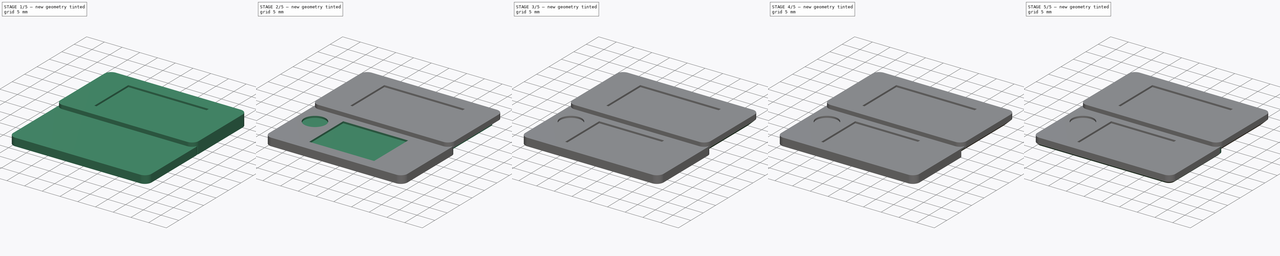
[diagram: build sequence overview — one tinted view per stage of 5, left to right]
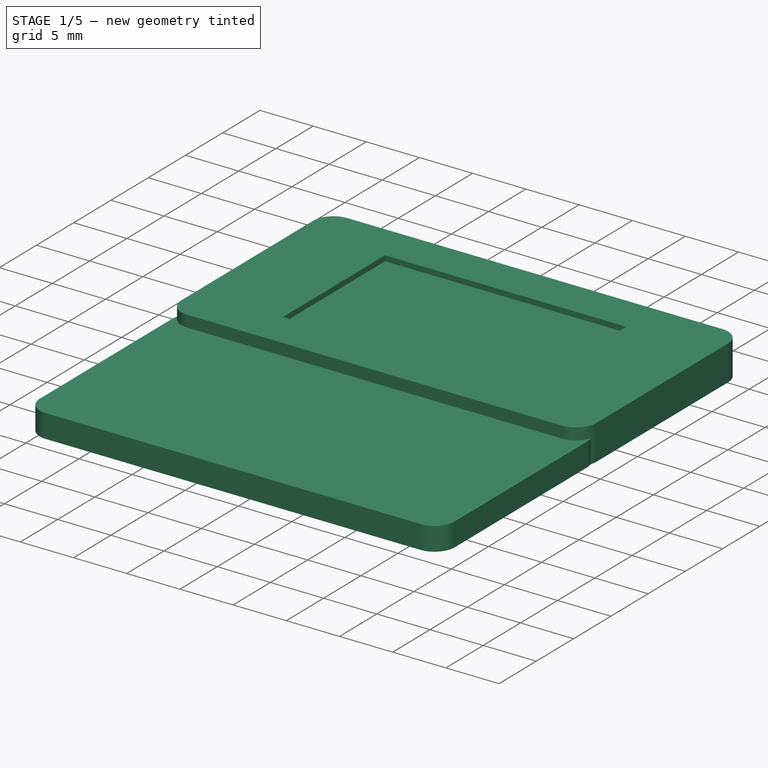
[diagram: stage 1 of 5 — iso view after this stage's code; geometry added in this stage tinted green]
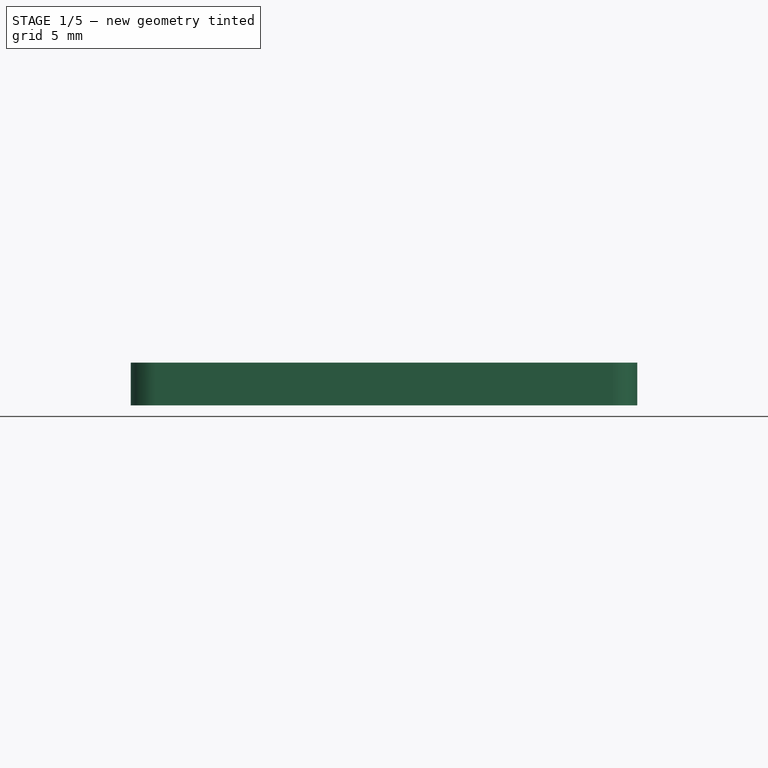
[diagram: stage 1 of 5 — front view after this stage's code; geometry added in this stage tinted green]
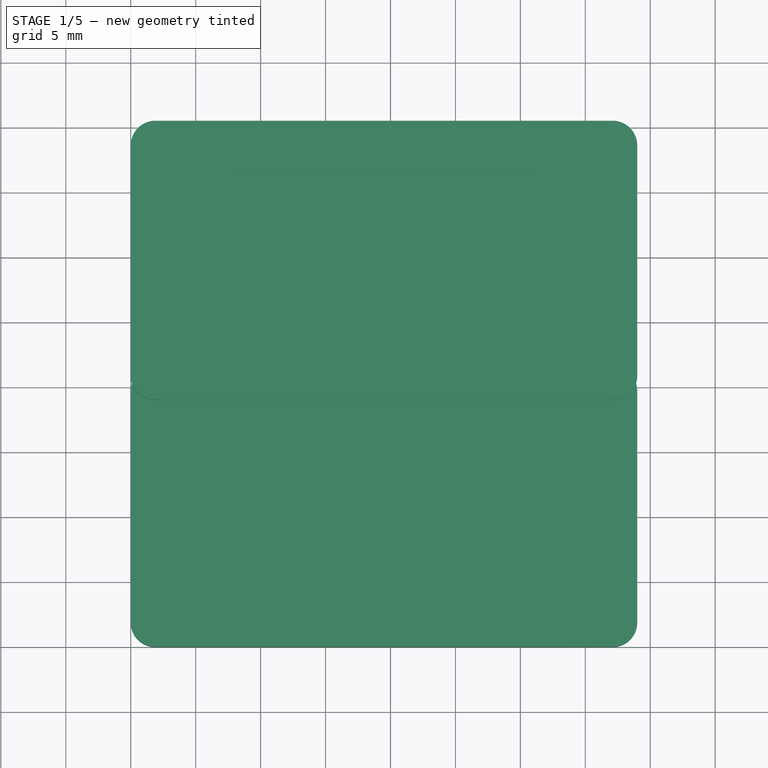
[diagram: stage 1 of 5 — top view after this stage's code; geometry added in this stage tinted green]
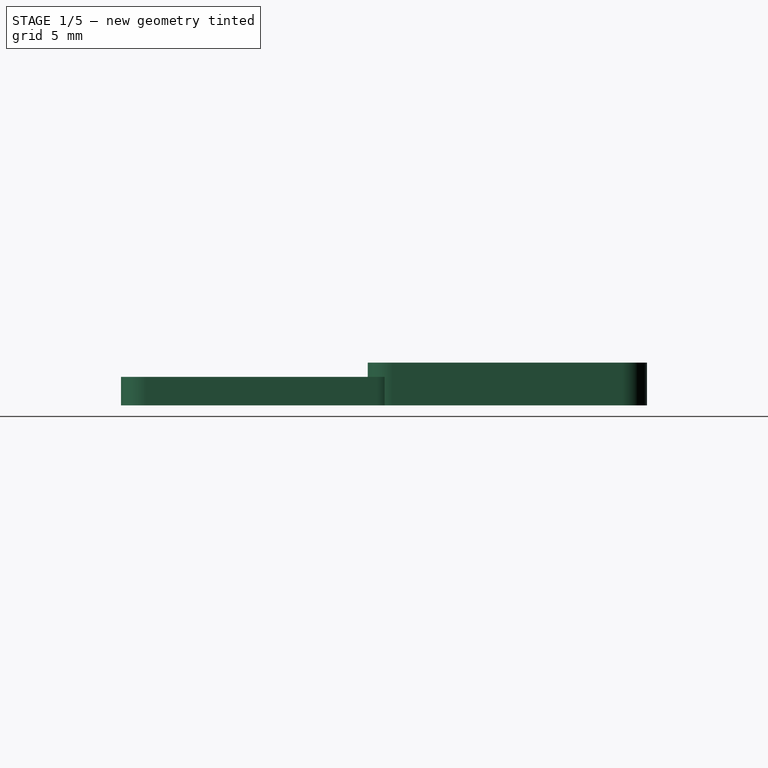
[diagram: stage 1 of 5 — right view after this stage's code; geometry added in this stage tinted green]
FCSTD DOCUMENT  (FreeCAD 0.20R29177 +426 (Git))
Label: 3DS Icon
License: All rights reserved
LicenseURL: http://en.wikipedia.org/wiki/All_rights_reserved
objects: Sketcher::SketchObject×13, PartDesign::Pocket×9, PartDesign::Pad×7, PartDesign::Body×2, PartDesign::Revolution×2, PartDesign::FeatureBase×1, PartDesign::Chamfer×1, App::Part×1
note: 54 computed .brp shape members not serialized (recipe doc carries the construction recipe); baked Part::Feature solids carry a one-line shape summary decoded from their .brp

FEATURE [Sketcher::SketchObject] Sketch
  FullyConstrained = true
  MapMode = 5
  Support = -> [XY_Plane001]
  sketch-geometry (12):
    g0: LineSegment StartX=0 StartY=0 StartZ=0 EndX=39 EndY=0 EndZ=0
    g1: LineSegment StartX=39 StartY=0 StartZ=0 EndX=39 EndY=40.5 EndZ=0
    g2: LineSegment StartX=39 StartY=40.5 StartZ=0 EndX=0 EndY=40.5 EndZ=0
    g3: LineSegment StartX=0 StartY=40.5 StartZ=0 EndX=0 EndY=0 EndZ=0
    g4: LineSegment StartX=1.9 StartY=40.5 StartZ=0 EndX=37.1 EndY=40.5 EndZ=0
    g5: LineSegment StartX=39 StartY=38.6 StartZ=0 EndX=39 EndY=1.9 EndZ=0
    g6: LineSegment StartX=37.1 StartY=0 StartZ=0 EndX=1.9 EndY=0 EndZ=0
    g7: LineSegment StartX=0 StartY=1.9 StartZ=0 EndX=0 EndY=38.6 EndZ=0
    g8: ArcOfCircle CenterX=1.9 CenterY=1.9 CenterZ=0 NormalX=0 NormalY=0 NormalZ=1 AngleXU=0 Radius=1.9 StartAngle=3.14159 EndAngle=4.71239
    g9: ArcOfCircle CenterX=37.1 CenterY=1.9 CenterZ=0 NormalX=0 NormalY=0 NormalZ=1 AngleXU=0 Radius=1.9 StartAngle=4.71239 EndAngle=6.28319
    g10: ArcOfCircle CenterX=37.1 CenterY=38.6 CenterZ=0 NormalX=0 NormalY=0 NormalZ=1 AngleXU=0 Radius=1.9 StartAngle=-9e-16 EndAngle=1.5708
    g11: ArcOfCircle CenterX=1.9 CenterY=38.6 CenterZ=0 NormalX=0 NormalY=0 NormalZ=1 AngleXU=0 Radius=1.9 StartAngle=1.5708 EndAngle=3.14159
  constraints (31):
    c: Coincident(g0,g1)
    c: Coincident(g1,g2)
    c: Coincident(g2,g3)
    c: Coincident(g3,g0)
    c: Horizontal(g0)
    c: Horizontal(g2)
    c: Vertical(g1)
    c: Vertical(g3)
    c: Coincident(g0,g-1)
    c: Distance(g0) = 39
    c: Distance(g1) = 40.5
    c: Horizontal(g4)
    c: Horizontal(g6)
    c: Vertical(g5)
    c: Vertical(g7)
    c: Tangent(g7,g8) = 1.5708
    c: Tangent(g6,g8) = 1.5708
    c: Tangent(g6,g9) = 1.5708
    c: Tangent(g5,g9) = 1.5708
    c: Tangent(g5,g10) = 1.5708
    c: Tangent(g4,g10) = 1.5708
    c: Tangent(g4,g11) = 1.5708
    c: Tangent(g7,g11) = 1.5708
    c: Radius(g10) = 1.9
    c: Equal(g11,g10)
    c: Equal(g8,g9)
    c: Equal(g9,g10)
    c: PointOnObject(g4,g2)
    c: PointOnObject(g7,g3)
    c: PointOnObject(g5,g1)
    c: PointOnObject(g6,g0)
FEATURE [PartDesign::Pad] Pad
  Direction = (0,0,1)
  Length = 3.3
  Length2 = 10
  Profile = -> Sketch
  ReferenceAxis = -> Sketch [N_Axis]
  Type = 0
FEATURE [Sketcher::SketchObject] Sketch001
  ExternalGeometry = -> [Pad]
  FullyConstrained = true
  MapMode = 5
  Placement = pos=(0,0,3.3) rot=(0,0,1;0rad)
  Support = -> [Pad]
  sketch-geometry (10):
    g0: LineSegment StartX=0 StartY=38.6 StartZ=0 EndX=0 EndY=20.9 EndZ=0
    g1: LineSegment StartX=1.9 StartY=19 StartZ=0 EndX=37.1 EndY=19 EndZ=0
    g2: LineSegment StartX=39 StartY=20.9 StartZ=0 EndX=39 EndY=38.6 EndZ=0
    g3: ArcOfCircle CenterX=1.9 CenterY=20.9 CenterZ=0 NormalX=0 NormalY=0 NormalZ=1 AngleXU=0 Radius=1.9 StartAngle=3.14159 EndAngle=4.71239
    g4: ArcOfCircle CenterX=37.1 CenterY=20.9 CenterZ=0 NormalX=0 NormalY=0 NormalZ=1 AngleXU=0 Radius=1.9 StartAngle=4.71239 EndAngle=6.28319
    g5: LineSegment StartX=1.9 StartY=2e-16 StartZ=0 EndX=37.1 EndY=0 EndZ=0
    g6: LineSegment StartX=39 StartY=1.9 StartZ=0 EndX=39 EndY=20.9 EndZ=0
    g7: LineSegment StartX=0 StartY=20.9 StartZ=0 EndX=2e-16 EndY=1.9 EndZ=0
    g8: ArcOfCircle CenterX=1.9 CenterY=1.9 CenterZ=0 NormalX=0 NormalY=0 NormalZ=1 AngleXU=0 Radius=1.9 StartAngle=3.14159 EndAngle=4.71239
    g9: ArcOfCircle CenterX=37.1 CenterY=1.9 CenterZ=0 NormalX=0 NormalY=0 NormalZ=1 AngleXU=0 Radius=1.9 StartAngle=4.71239 EndAngle=6.28319
  constraints (24):
    c: Coincident(g0,g-3)
    c: Horizontal(g1)
    c: Coincident(g2,g-4)
    c: Vertical(g2)
    c: Tangent(g0,g3) = -1.5708
    c: Tangent(g1,g3) = -1.5708
    c: Tangent(g1,g4) = -1.5708
    c: Tangent(g2,g4) = -1.5708
    c: Equal(g4,g-4)
    c: Equal(g4,g3)
    c: Vertical(g0)
    c: Distance(g-4,g1) = 21.5
    c: Coincident(g5,g-5)
    c: Coincident(g5,g-6)
    c: Coincident(g6,g-6)
    c: Coincident(g7,g-5)
    c: Coincident(g3,g7)
    c: Coincident(g4,g6)
    c: Coincident(g8,g7)
    c: Coincident(g8,g5)
    c: Coincident(g9,g5)
    c: Coincident(g9,g6)
    c: Equal(g9,g-6)
    c: Equal(g-5,g8)
FEATURE [PartDesign::Pocket] Pocket
  BaseFeature = -> Pad
  Direction = (0,0,-1)
  Length = 0
  Length2 = 5
  Offset = 2.2
  Profile = -> Sketch001
  ReferenceAxis = -> Sketch001 [N_Axis]
  Reversed = true
  Type = 3
  UpToFace = -> Pad [Face9]
FEATURE [Sketcher::SketchObject] Sketch002
  ExternalGeometry = -> [Pocket]
  FullyConstrained = true
  MapMode = 5
  Placement = pos=(0,0,2.2) rot=(0,0,1;0rad)
  Support = -> [Pocket]
  sketch-geometry (8):
    g0: LineSegment StartX=2e-16 StartY=1.9 StartZ=0 EndX=0 EndY=19.7 EndZ=0
    g1: LineSegment StartX=39 StartY=1.9 StartZ=0 EndX=39 EndY=19.7 EndZ=0
    g2: LineSegment StartX=0 StartY=20.9 StartZ=0 EndX=0 EndY=19.7 EndZ=0
    g3: ArcOfCircle CenterX=1.9 CenterY=19.7 CenterZ=0 NormalX=0 NormalY=0 NormalZ=1 AngleXU=0 Radius=1.9 StartAngle=2.8203 EndAngle=3.14159
    g4: ArcOfCircle CenterX=1.9 CenterY=20.9 CenterZ=0 NormalX=0 NormalY=0 NormalZ=1 AngleXU=0 Radius=1.9 StartAngle=3.14159 EndAngle=3.46288
    g5: LineSegment StartX=39 StartY=19.7 StartZ=0 EndX=39 EndY=20.9 EndZ=0
    g6: ArcOfCircle CenterX=37.1 CenterY=20.9 CenterZ=0 NormalX=0 NormalY=0 NormalZ=1 AngleXU=0 Radius=1.9 StartAngle=5.9619 EndAngle=6.28319
    g7: ArcOfCircle CenterX=37.1 CenterY=19.7 CenterZ=0 NormalX=0 NormalY=0 NormalZ=1 AngleXU=0 Radius=1.9 StartAngle=7.47961e-07 EndAngle=0.321289
  constraints (22):
    c: Coincident(g0,g-6)
    c: Coincident(g1,g-5)
    c: Vertical(g1)
    c: Equal(g0,g1)
    c: Distance(g0) = 17.8
    c: Coincident(g2,g0)
    c: Coincident(g2,g-3)
    c: Vertical(g2)
    c: Coincident(g3,g2)
    c: PointOnObject(g3,g-3)
    c: Coincident(g4,g3)
    c: Tangent(g0,g3)
    c: Tangent(g4,g2) = -1.5708
    c: Equal(g-3,g3)
    c: Coincident(g5,g1)
    c: Coincident(g5,g-4)
    c: Tangent(g6,g5) = -1.5708
    c: Coincident(g7,g5)
    c: Coincident(g7,g6)
    c: Tangent(g1,g7)
    c: Equal(g-4,g7)
    c: Equal(g-4,g6)
FEATURE [PartDesign::Pocket] Pocket001
  BaseFeature = -> Pocket
  Direction = (0,0,-1)
  Length = 5
  Length2 = 5
  Profile = -> Sketch002
  ReferenceAxis = -> Sketch002 [N_Axis]
  Refine = true
  Type = 0
FEATURE [Sketcher::SketchObject] Sketch003
  ExternalGeometry = -> [Pocket001]
  FullyConstrained = true
  MapMode = 5
  Placement = pos=(0,0,3.3) rot=(0,0,1;0rad)
  Support = -> [Pocket001]
  sketch-geometry (5):
    g0: LineSegment StartX=8.15 StartY=36.6 StartZ=0 EndX=30.85 EndY=36.6 EndZ=0
    g1: LineSegment StartX=30.85 StartY=36.6 StartZ=0 EndX=30.85 EndY=22.9 EndZ=0
    g2: LineSegment StartX=30.85 StartY=22.9 StartZ=0 EndX=8.15 EndY=22.9 EndZ=0
    g3: LineSegment StartX=8.15 StartY=22.9 StartZ=0 EndX=8.15 EndY=36.6 EndZ=0
    g4: LineSegment StartX=19.5 StartY=40.5 StartZ=0 EndX=19.5 EndY=36.6 EndZ=0
  constraints (14):
    c: Coincident(g0,g1)
    c: Coincident(g1,g2)
    c: Coincident(g2,g3)
    c: Coincident(g3,g0)
    c: Horizontal(g0)
    c: Horizontal(g2)
    c: Vertical(g1)
    c: Vertical(g3)
    c: Vertical(g4)
    c: Symmetric(g-3,g-3,g4)
    c: Symmetric(g0,g0,g4)
    c: Distance(g0) = 22.7
    c: Distance(g1) = 13.7
    c: Distance(g4) = 3.9
FEATURE [PartDesign::Pocket] Pocket002
  BaseFeature = -> Pocket001
  Direction = (0,0,-1)
  Length = 0.5
  Length2 = 5
  Profile = -> Sketch003
  ReferenceAxis = -> Sketch003 [N_Axis]
  Type = 0
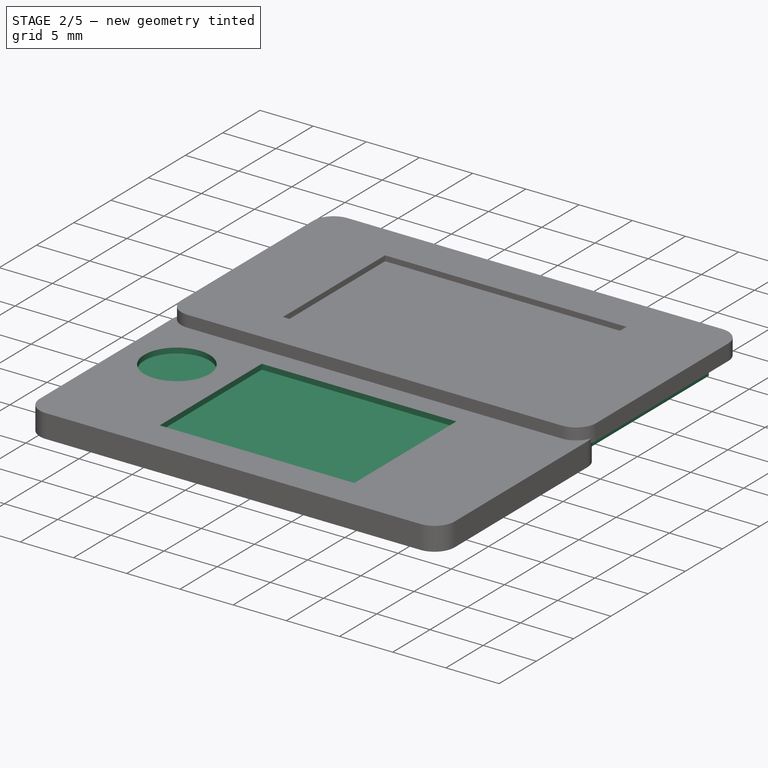
[diagram: stage 2 of 5 — iso view after this stage's code; geometry added in this stage tinted green]
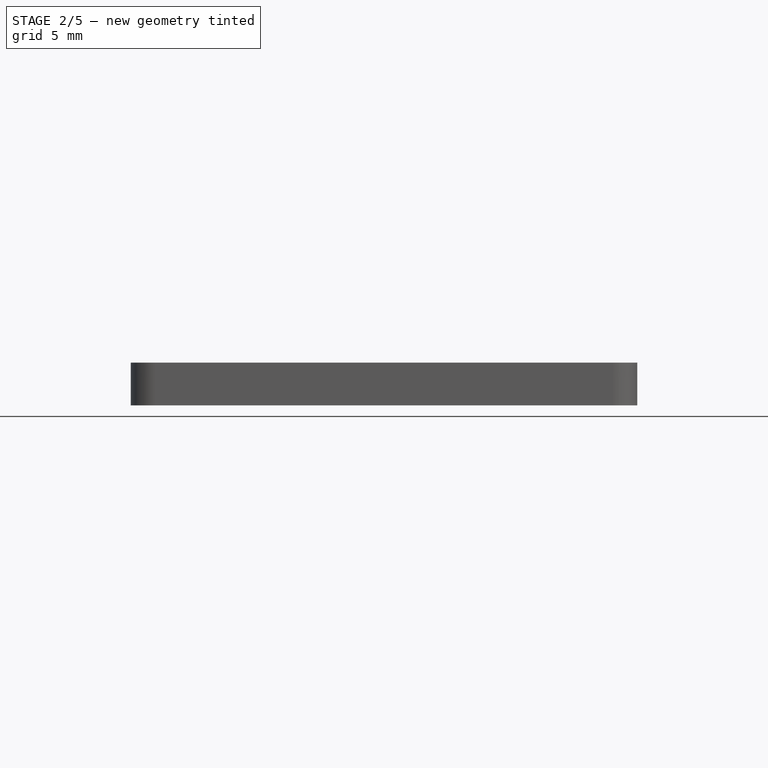
[diagram: stage 2 of 5 — front view after this stage's code; geometry added in this stage tinted green]
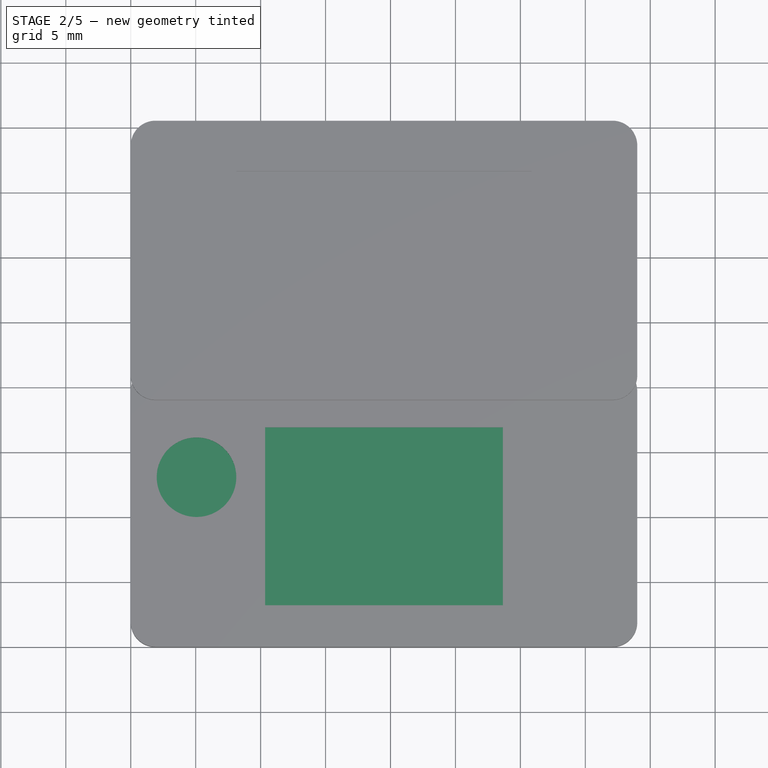
[diagram: stage 2 of 5 — top view after this stage's code; geometry added in this stage tinted green]
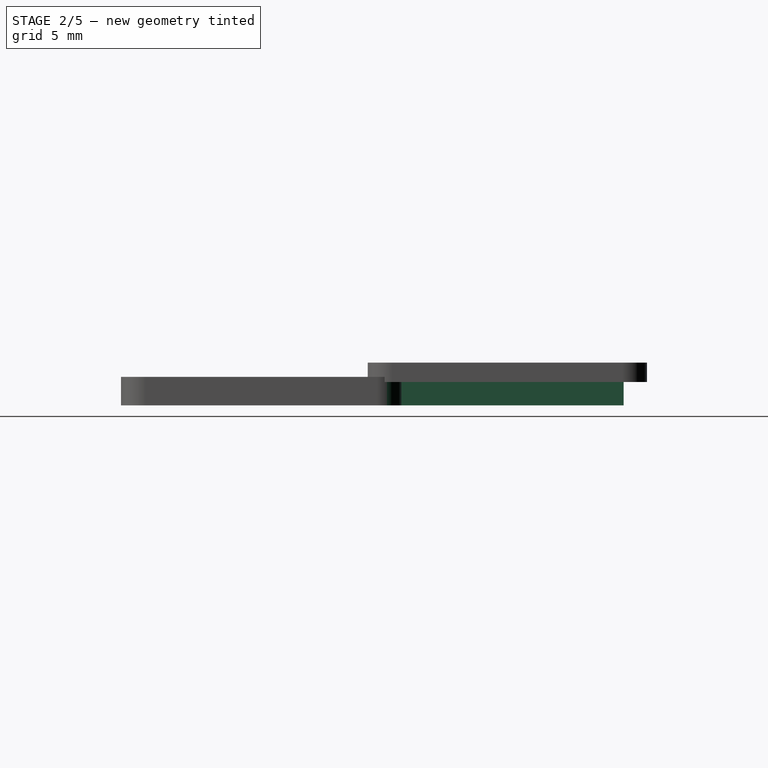
[diagram: stage 2 of 5 — right view after this stage's code; geometry added in this stage tinted green]
FEATURE [Sketcher::SketchObject] Sketch004
  ExternalGeometry = -> [Pocket002]
  FullyConstrained = true
  MapMode = 5
  Placement = pos=(0,0,2.2) rot=(0,0,1;0rad)
  Support = -> [Pocket002]
  sketch-geometry (8):
    g0: LineSegment StartX=10.35 StartY=16.9 StartZ=0 EndX=28.65 EndY=16.9 EndZ=0
    g1: LineSegment StartX=28.65 StartY=16.9 StartZ=0 EndX=28.65 EndY=3.2 EndZ=0
    g2: LineSegment StartX=28.65 StartY=3.2 StartZ=0 EndX=10.35 EndY=3.2 EndZ=0
    g3: LineSegment StartX=10.35 StartY=3.2 StartZ=0 EndX=10.35 EndY=16.9 EndZ=0
    g4: LineSegment StartX=19.5 StartY=3.2 StartZ=0 EndX=19.5 EndY=0 EndZ=0
    g5: Circle CenterX=5.0625 CenterY=13.0625 CenterZ=0 NormalX=0 NormalY=0 NormalZ=1 AngleXU=0 Radius=3.0625
    g6: LineSegment StartX=5.0625 StartY=10 StartZ=0 EndX=5.0625 EndY=0 EndZ=0
    g7: LineSegment StartX=2 StartY=13.0625 StartZ=0 EndX=0 EndY=13.0625 EndZ=0
  constraints (25):
    c: Coincident(g0,g1)
    c: Coincident(g1,g2)
    c: Coincident(g2,g3)
    c: Coincident(g3,g0)
    c: Horizontal(g0)
    c: Horizontal(g2)
    c: Vertical(g1)
    c: Vertical(g3)
    c: Symmetric(g2,g1,g4)
    c: Symmetric(g-3,g-3,g4)
    c: Vertical(g4)
    c: Distance(g3) = 13.7
    c: Distance(g0) = 18.3
    c: Distance(g4) = 3.2
    c: PointOnObject(g6,g5)
    c: PointOnObject(g6,g-3)
    c: Vertical(g6)
    c: PointOnObject(g7,g5)
    c: PointOnObject(g7,g-4)
    c: Horizontal(g7)
    c: Perpendicular(g5,g7)
    c: Perpendicular(g5,g6)
    c: Diameter(g5) = 6.125
    c: Distance(g7) = 2
    c: Distance(g6) = 10
FEATURE [PartDesign::Pocket] Pocket003
  BaseFeature = -> Pocket002
  Direction = (0,0,-1)
  Length = 0.5
  Length2 = 5
  Profile = -> Sketch004
  ReferenceAxis = -> Sketch004 [N_Axis]
  Type = 0
FEATURE [PartDesign::Body] Body  label="Icon"
  Group = -> [Sketch,Pad,Sketch001,Pocket,Sketch002,Pocket001,Sketch003,Pocket002,Sketch004,Pocket003]
  Origin = -> Origin001
  Tip = -> Pocket003
FEATURE [PartDesign::FeatureBase] Clone
  BaseFeature = -> Pocket003
FEATURE [Sketcher::SketchObject] Sketch005
  ExternalGeometry = -> [Clone]
  FullyConstrained = true
  MapMode = 5
  Placement = pos=(0,0,0) rot=(1,0,0;3.14159rad)
  Support = -> [Clone]
  sketch-geometry (15):
    g0: ArcOfCircle CenterX=1.9 CenterY=-19.7 CenterZ=0 NormalX=0 NormalY=0 NormalZ=1 AngleXU=0 Radius=1.9 StartAngle=3.14159 EndAngle=4.71239
    g1: ArcOfCircle CenterX=37.1 CenterY=-19.7 CenterZ=0 NormalX=0 NormalY=0 NormalZ=1 AngleXU=0 Radius=1.9 StartAngle=4.71239 EndAngle=6.28319
    g2: LineSegment StartX=1.9 StartY=-21.6 StartZ=0 EndX=37.1 EndY=-21.6 EndZ=0
    g3: LineSegment StartX=0 StartY=-19.7 StartZ=0 EndX=0 EndY=-17.7 EndZ=0
    g4: LineSegment StartX=0 StartY=-17.7 StartZ=0 EndX=39 EndY=-17.7 EndZ=0
    g5: LineSegment StartX=39 StartY=-17.7 StartZ=0 EndX=39 EndY=-19.7 EndZ=0
    g6: ArcOfCircle CenterX=1.9 CenterY=-20.9 CenterZ=0 NormalX=0 NormalY=0 NormalZ=1 AngleXU=0 Radius=1.9 StartAngle=2.8203 EndAngle=3.14159
    g7: ArcOfCircle CenterX=37.1 CenterY=-20.9 CenterZ=0 NormalX=0 NormalY=0 NormalZ=1 AngleXU=0 Radius=1.9 StartAngle=-8.17e-14 EndAngle=0.321289
    g8: ArcOfCircle CenterX=37.1 CenterY=-19.7 CenterZ=0 NormalX=0 NormalY=0 NormalZ=1 AngleXU=0 Radius=1.9 StartAngle=4.71239 EndAngle=5.9619
    g9: ArcOfCircle CenterX=1.9 CenterY=-19.7 CenterZ=0 NormalX=0 NormalY=0 NormalZ=1 AngleXU=0 Radius=1.9 StartAngle=3.46288 EndAngle=4.71239
    g10: LineSegment StartX=0 StartY=-20.9 StartZ=0 EndX=8.25477e-11 EndY=-38.6 EndZ=0
    g11: LineSegment StartX=39 StartY=-20.9 StartZ=0 EndX=39 EndY=-38.6 EndZ=0
    g12: LineSegment StartX=37.1 StartY=-40.5 StartZ=0 EndX=1.9 EndY=-40.5 EndZ=0
    g13: ArcOfCircle CenterX=1.9 CenterY=-38.6 CenterZ=0 NormalX=0 NormalY=0 NormalZ=1 AngleXU=0 Radius=1.9 StartAngle=3.14159 EndAngle=4.71239
    g14: ArcOfCircle CenterX=37.1 CenterY=-38.6 CenterZ=0 NormalX=0 NormalY=0 NormalZ=1 AngleXU=0 Radius=1.9 StartAngle=4.71239 EndAngle=6.28319
  constraints (39):
    c: Coincident(g0,g-3)
    c: Coincident(g1,g-4)
    c: Horizontal(g2)
    c: Tangent(g2,g0) = -1.5708
    c: Tangent(g2,g1) = -1.5708
    c: Equal(g-4,g1)
    c: Equal(g1,g0)
    c: Coincident(g3,g0)
    c: Vertical(g3)
    c: Coincident(g4,g3)
    c: Horizontal(g4)
    c: Coincident(g5,g4)
    c: Vertical(g5)
    c: Tangent(g5,g1) = 1.5708
    c: Distance(g5) = 2
    c: Coincident(g6,g-7)
    c: Coincident(g6,g-3)
    c: Equal(g-7,g6)
    c: Coincident(g7,g-4)
    c: Coincident(g7,g-6)
    c: Equal(g-6,g7)
    c: Coincident(g8,g7)
    c: Coincident(g8,g1)
    c: Equal(g8,g1)
    c: Coincident(g9,g6)
    c: Coincident(g9,g0)
    c: Equal(g0,g9)
    c: Coincident(g10,g6)
    c: Coincident(g10,g-8)
    c: Coincident(g11,g7)
    c: Coincident(g11,g-9)
    c: Coincident(g12,g-9)
    c: Coincident(g12,g-8)
    c: Coincident(g13,g10)
    c: Coincident(g13,g12)
    c: Coincident(g14,g12)
    c: Coincident(g14,g11)
    c: Equal(g14,g-9)
    c: Equal(g-8,g13)
FEATURE [PartDesign::Pocket] Pocket004
  BaseFeature = -> Clone
  Direction = (0,0,1)
  Length = 0
  Length2 = 5
  Offset = 1.5
  Profile = -> Sketch005
  ReferenceAxis = -> Sketch005 [N_Axis]
  Refine = true
  Reversed = true
  Type = 3
  UpToFace = -> Clone [Face5]
FEATURE [Sketcher::SketchObject] Sketch006
  ExternalGeometry = -> [Pocket004]
  FullyConstrained = true
  MapMode = 5
  Placement = pos=(0,0,1.8) rot=(1,0,0;3.14159rad)
  Support = -> [Pocket004]
  sketch-geometry (13):
    g0: LineSegment StartX=38.9028 StartY=-20.3 StartZ=0 EndX=37.1028 EndY=-20.3 EndZ=0
    g1: LineSegment StartX=37.1028 StartY=-20.3 StartZ=0 EndX=37.1028 EndY=-18.5 EndZ=0
    g2: LineSegment StartX=37.1028 StartY=-18.5 StartZ=0 EndX=38.9028 EndY=-18.5 EndZ=0
    g3: LineSegment StartX=38.9028 StartY=-18.5 StartZ=0 EndX=38.9028 EndY=-20.3 EndZ=0
    g4: LineSegment StartX=37.1028 StartY=-18.5 StartZ=0 EndX=1.89722 EndY=-18.5 EndZ=0
    g5: LineSegment StartX=1.89722 StartY=-18.5 StartZ=0 EndX=1.89722 EndY=-38.7 EndZ=0
    g6: LineSegment StartX=1.89722 StartY=-38.7 StartZ=0 EndX=37.1028 EndY=-38.7 EndZ=0
    g7: LineSegment StartX=37.1028 StartY=-38.7 StartZ=0 EndX=37.1028 EndY=-18.5 EndZ=0
    g8: LineSegment StartX=37.1 StartY=-40.5 StartZ=0 EndX=37.1 EndY=-38.7 EndZ=0
    g9: LineSegment StartX=0.0972244 StartY=-20.3 StartZ=0 EndX=1.89722 EndY=-20.3 EndZ=0
    g10: LineSegment StartX=1.89722 StartY=-20.3 StartZ=0 EndX=1.89722 EndY=-18.5 EndZ=0
    g11: LineSegment StartX=1.89722 StartY=-18.5 StartZ=0 EndX=0.0972244 EndY=-18.5 EndZ=0
    g12: LineSegment StartX=0.0972244 StartY=-18.5 StartZ=0 EndX=0.0972244 EndY=-20.3 EndZ=0
  constraints (35):
    c: Coincident(g0,g1)
    c: Coincident(g1,g2)
    c: Coincident(g2,g3)
    c: Coincident(g3,g0)
    c: Horizontal(g0)
    c: Horizontal(g2)
    c: Vertical(g1)
    c: Vertical(g3)
    c: Coincident(g0,g-4)
    c: Coincident(g4,g5)
    c: Coincident(g6,g7)
    c: Coincident(g7,g4)
    c: Horizontal(g4)
    c: Horizontal(g6)
    c: Vertical(g5)
    c: Vertical(g7)
    c: Coincident(g4,g1)
    c: Equal(g2,g3)
    c: Coincident(g8,g-3)
    c: PointOnObject(g8,g6)
    c: Vertical(g8)
    c: Equal(g8,g2)
    c: Distance(g3) = 1.8
    c: Coincident(g9,g10)
    c: Coincident(g10,g11)
    c: Coincident(g11,g12)
    c: Coincident(g12,g9)
    c: Horizontal(g9)
    c: Horizontal(g11)
    c: Vertical(g10)
    c: Vertical(g12)
    c: Coincident(g9,g-5)
    c: Coincident(g10,g4)
    c: Equal(g11,g2)
    c: Coincident(g5,g6)
FEATURE [PartDesign::Pad] Pad001
  BaseFeature = -> Pocket004
  Direction = (0,0,-1)
  Length = 1.8
  Length2 = 10
  Profile = -> Sketch006
  ReferenceAxis = -> Sketch006 [N_Axis]
  Refine = true
  Type = 0
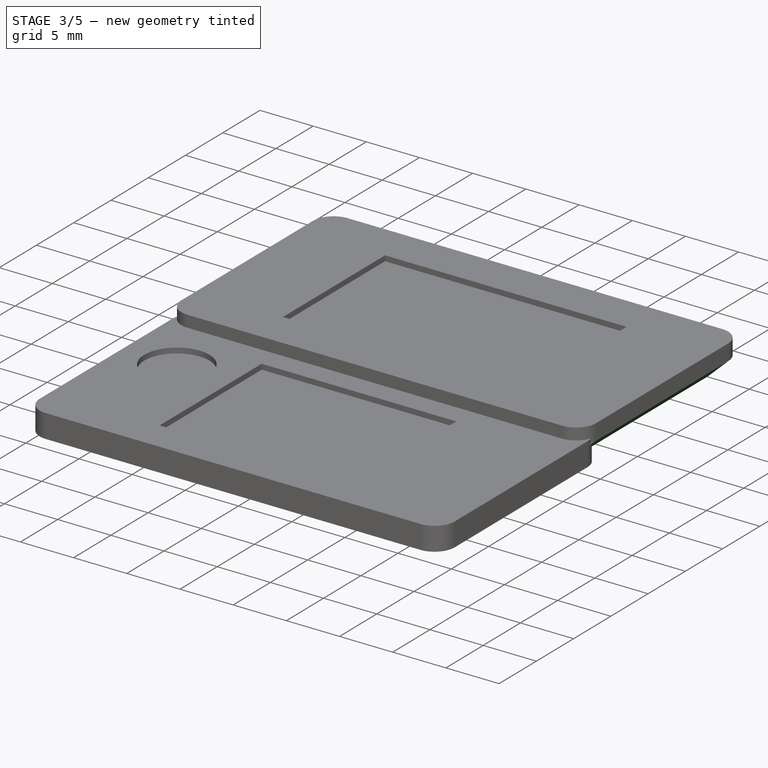
[diagram: stage 3 of 5 — iso view after this stage's code; geometry added in this stage tinted green]
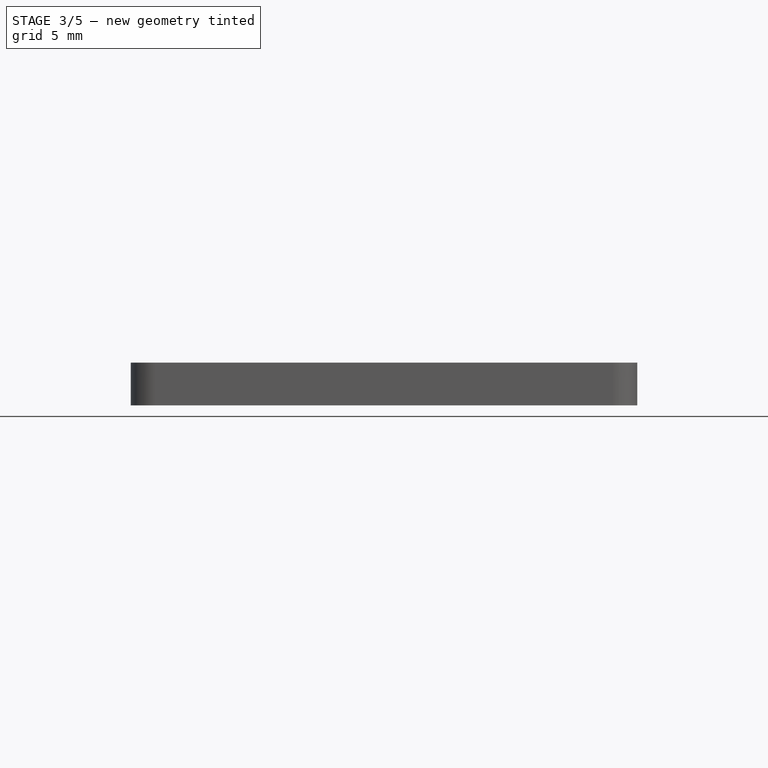
[diagram: stage 3 of 5 — front view after this stage's code; geometry added in this stage tinted green]
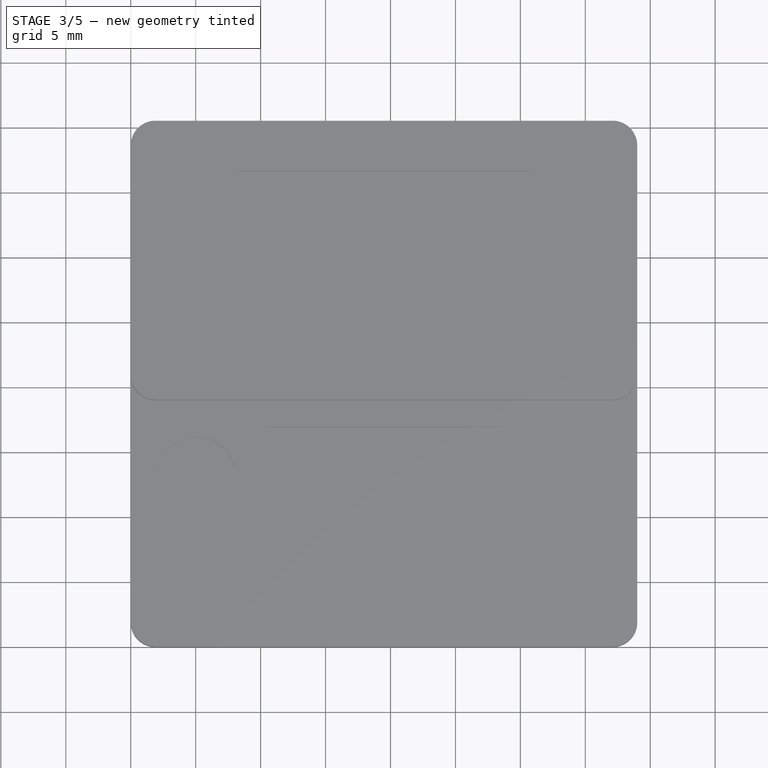
[diagram: stage 3 of 5 — top view after this stage's code; geometry added in this stage tinted green]
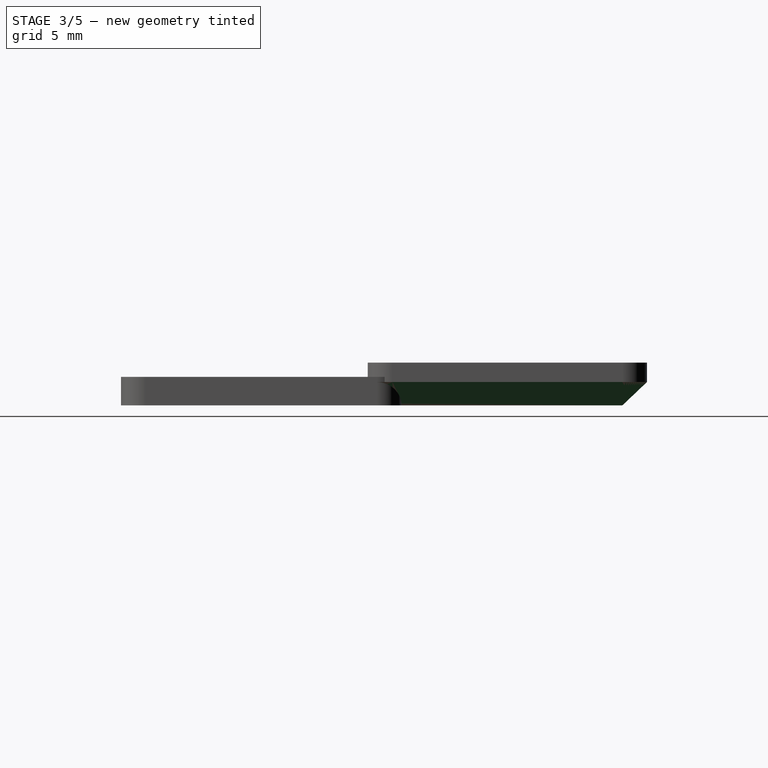
[diagram: stage 3 of 5 — right view after this stage's code; geometry added in this stage tinted green]
FEATURE [Sketcher::SketchObject] Sketch007
  ExternalGeometry = -> [Pad001]
  FullyConstrained = true
  MapMode = 5
  Placement = pos=(0,38.7,0) rot=(0,0.707107,0.707107;3.14159rad)
  Support = -> [Pad001]
  sketch-geometry (3):
    g0: LineSegment StartX=-1.89722 StartY=1.8 StartZ=0 EndX=0 EndY=1.8 EndZ=0
    g1: LineSegment StartX=0 StartY=1.8 StartZ=0 EndX=-1.89722 EndY=0 EndZ=0
    g2: LineSegment StartX=-1.89722 StartY=0 StartZ=0 EndX=-1.89722 EndY=1.8 EndZ=0
  constraints (6):
    c: Coincident(g0,g-3)
    c: Coincident(g0,g-4)
    c: Coincident(g1,g0)
    c: Coincident(g1,g-3)
    c: Coincident(g2,g1)
    c: Coincident(g2,g0)
FEATURE [PartDesign::Pad] Pad002
  BaseFeature = -> Pad001
  Direction = (0,1,-2e-16)
  Length = 19
  Length2 = 10
  Profile = -> Sketch007
  ReferenceAxis = -> Sketch007 [N_Axis]
  Refine = true
  Reversed = true
  Type = 0
FEATURE [Sketcher::SketchObject] Sketch008
  ExternalGeometry = -> [Pad002]
  FullyConstrained = true
  MapMode = 5
  Placement = pos=(0,38.7,0) rot=(0,0.707107,0.707107;3.14159rad)
  Support = -> [Pad002]
  sketch-geometry (3):
    g0: LineSegment StartX=-39 StartY=1.8 StartZ=0 EndX=-37.1028 EndY=1.8 EndZ=0
    g1: LineSegment StartX=-37.1028 StartY=1.8 StartZ=0 EndX=-37.1028 EndY=-2e-16 EndZ=0
    g2: LineSegment StartX=-37.1028 StartY=-2e-16 StartZ=0 EndX=-39 EndY=1.8 EndZ=0
  constraints (6):
    c: Coincident(g0,g-4)
    c: Coincident(g0,g-3)
    c: Coincident(g1,g0)
    c: Coincident(g1,g-3)
    c: Coincident(g2,g1)
    c: Coincident(g2,g0)
FEATURE [PartDesign::Pad] Pad003
  BaseFeature = -> Pad002
  Direction = (0,1,-2e-16)
  Length = 20
  Length2 = 10
  Profile = -> Sketch008
  ReferenceAxis = -> Sketch008 [N_Axis]
  Refine = true
  Reversed = true
  Type = 0
FEATURE [PartDesign::Pocket] Pocket005
  BaseFeature = -> Pad003
  Direction = (0,-1,0)
  Length = 0.1
  Length2 = 5
  Profile = -> Pad003 [Face41]
  Refine = true
  Type = 0
FEATURE [Sketcher::SketchObject] Sketch010
  FullyConstrained = false
  MapMode = 5
  Placement = pos=(9e-16,38.6,6.5e-15) rot=(0,0.707107,0.707107;3.14159rad)
  sketch-geometry (3):
    g0: LineSegment StartX=-39 StartY=1.8 StartZ=0 EndX=-37.1028 EndY=1.8 EndZ=0
    g1: LineSegment StartX=-37.1028 StartY=1.8 StartZ=0 EndX=-37.1028 EndY=0 EndZ=0
    g2: LineSegment StartX=-37.1028 StartY=0 StartZ=0 EndX=-39 EndY=1.8 EndZ=0
  constraints (5):
    c: Horizontal(g0)
    c: Coincident(g1,g0)
    c: Vertical(g1)
    c: Coincident(g2,g1)
    c: Coincident(g2,g0)
FEATURE [PartDesign::Revolution] Revolution001
  Angle = 90
  Axis = (0,2e-16,-1)
  Base = (37.1028,38.6,1.8)
  BaseFeature = -> Pocket005
  Profile = -> Sketch010
  ReferenceAxis = -> Sketch010 [Edge2]
  Reversed = true
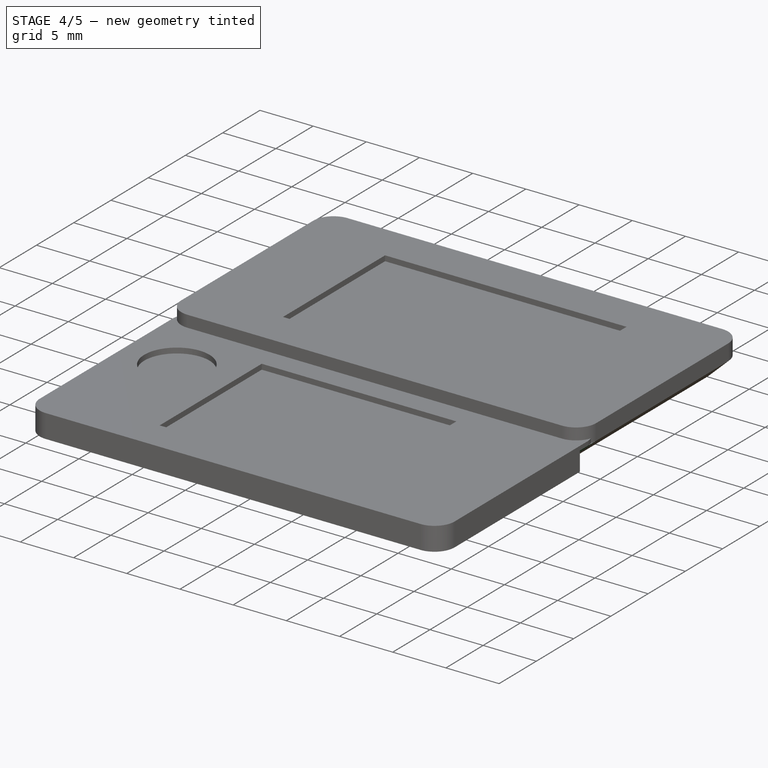
[diagram: stage 4 of 5 — iso view after this stage's code; geometry added in this stage tinted green]
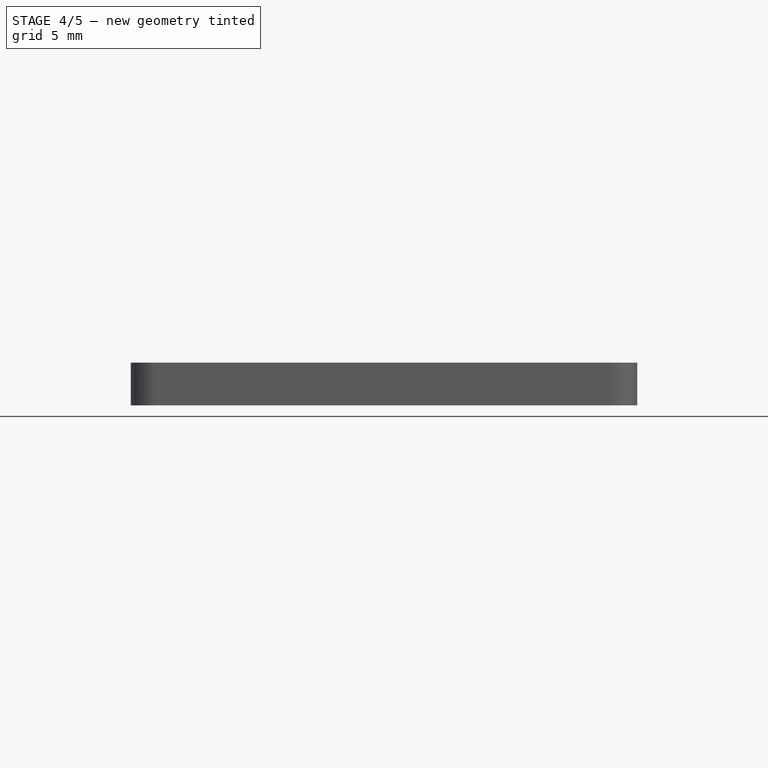
[diagram: stage 4 of 5 — front view after this stage's code; geometry added in this stage tinted green]
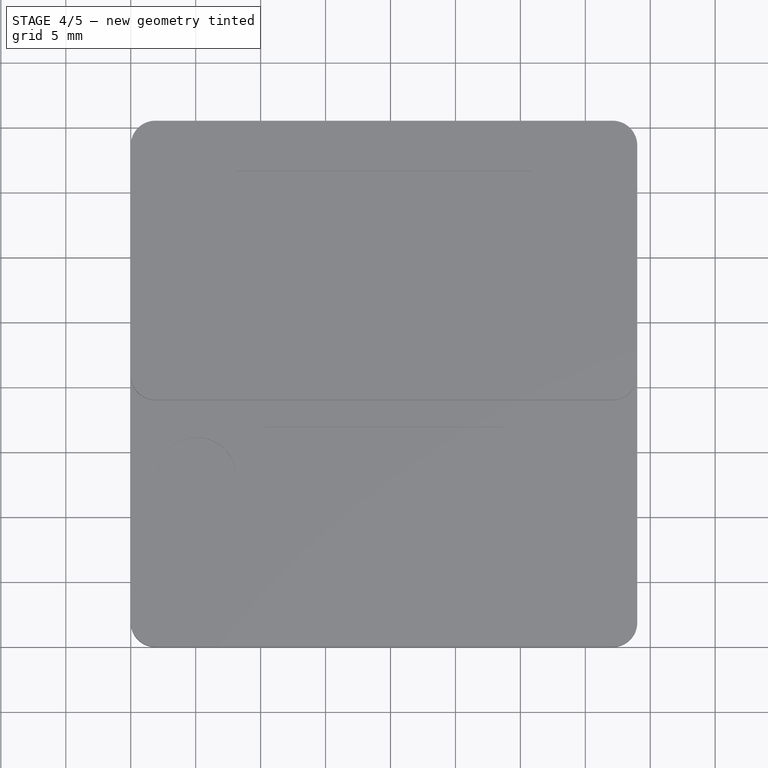
[diagram: stage 4 of 5 — top view after this stage's code; geometry added in this stage tinted green]
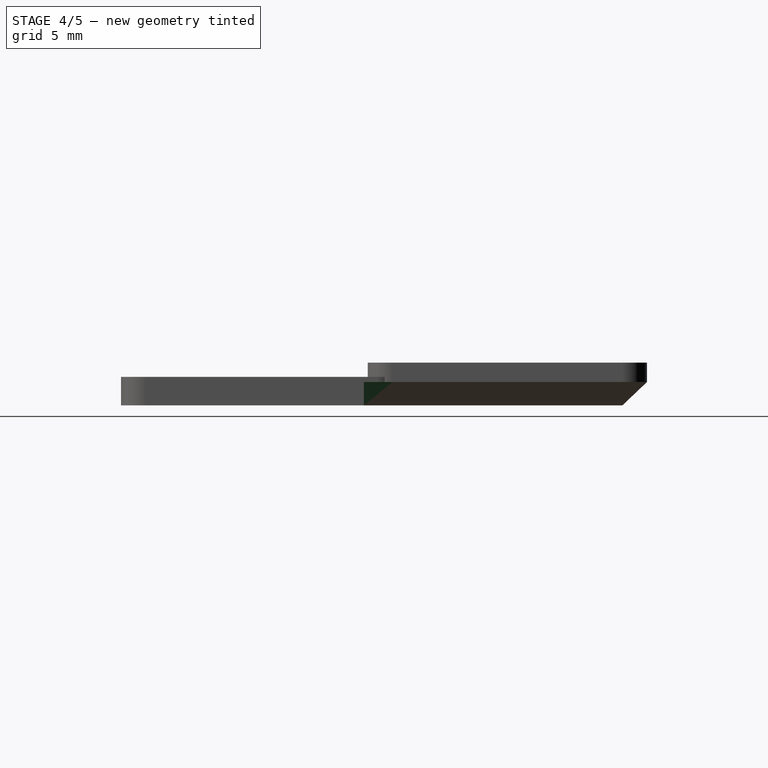
[diagram: stage 4 of 5 — right view after this stage's code; geometry added in this stage tinted green]
FEATURE [Sketcher::SketchObject] Sketch011
  ExternalGeometry = -> [Revolution001]
  FullyConstrained = true
  MapMode = 5
  Placement = pos=(0,38.6,0) rot=(0,0.707107,0.707107;3.14159rad)
  Support = -> [Revolution001]
  sketch-geometry (3):
    g0: LineSegment StartX=0 StartY=1.8 StartZ=0 EndX=-1.89722 EndY=0 EndZ=0
    g1: LineSegment StartX=-1.89722 StartY=0 StartZ=0 EndX=-1.89722 EndY=1.8 EndZ=0
    g2: LineSegment StartX=-1.89722 StartY=1.8 StartZ=0 EndX=0 EndY=1.8 EndZ=0
  constraints (7):
    c: Coincident(g0,g-3)
    c: Coincident(g0,g-3)
    c: Coincident(g1,g0)
    c: Vertical(g1)
    c: Coincident(g2,g1)
    c: Coincident(g2,g0)
    c: Horizontal(g2)
FEATURE [PartDesign::Revolution] Revolution
  Angle = 90
  Axis = (0,2e-16,1)
  Base = (1.89722,38.6,0)
  BaseFeature = -> Revolution001
  Profile = -> Sketch011
  ReferenceAxis = -> Sketch011 [Edge2]
  Reversed = true
FEATURE [PartDesign::Pad] Pad004
  BaseFeature = -> Revolution
  Direction = (-1,1e-16,-2e-16)
  Length = 10
  Length2 = 10
  Profile = -> Revolution [Face5]
  Refine = true
  Type = 3
  UpToFace = -> Revolution [Face3]
FEATURE [Sketcher::SketchObject] Sketch012
  ExternalGeometry = -> [Pad004]
  FullyConstrained = true
  MapMode = 5
  Placement = pos=(39,0,0) rot=(0.57735,0.57735,0.57735;2.0944rad)
  Support = -> [Pad004]
  sketch-geometry (4):
    g0: LineSegment StartX=18.7 StartY=1.8 StartZ=0 EndX=21.6 EndY=1.8 EndZ=0
    g1: LineSegment StartX=21.6 StartY=1.8 StartZ=0 EndX=21.6 EndY=0 EndZ=0
    g2: LineSegment StartX=21.6 StartY=0 StartZ=0 EndX=18.7 EndY=0 EndZ=0
    g3: LineSegment StartX=18.7 StartY=0 StartZ=0 EndX=18.7 EndY=1.8 EndZ=0
  constraints (10):
    c: Coincident(g0,g1)
    c: Coincident(g1,g2)
    c: Coincident(g2,g3)
    c: Coincident(g3,g0)
    c: Horizontal(g0)
    c: Horizontal(g2)
    c: Vertical(g1)
    c: Vertical(g3)
    c: Coincident(g0,g-3)
    c: Coincident(g1,g-4)
FEATURE [PartDesign::Pocket] Pocket006
  BaseFeature = -> Pad004
  Direction = (-1,0,0)
  Length = 100
  Length2 = 5
  Profile = -> Sketch012
  ReferenceAxis = -> Sketch012 [N_Axis]
  Type = 0
FEATURE [PartDesign::Pad] Pad005
  BaseFeature = -> Pocket006
  Direction = (0,-1,0)
  Length = 10
  Length2 = 10
  Profile = -> Pocket006 [Face14]
  Refine = true
  Type = 3
  UpToFace = -> Pocket006 [Face29]
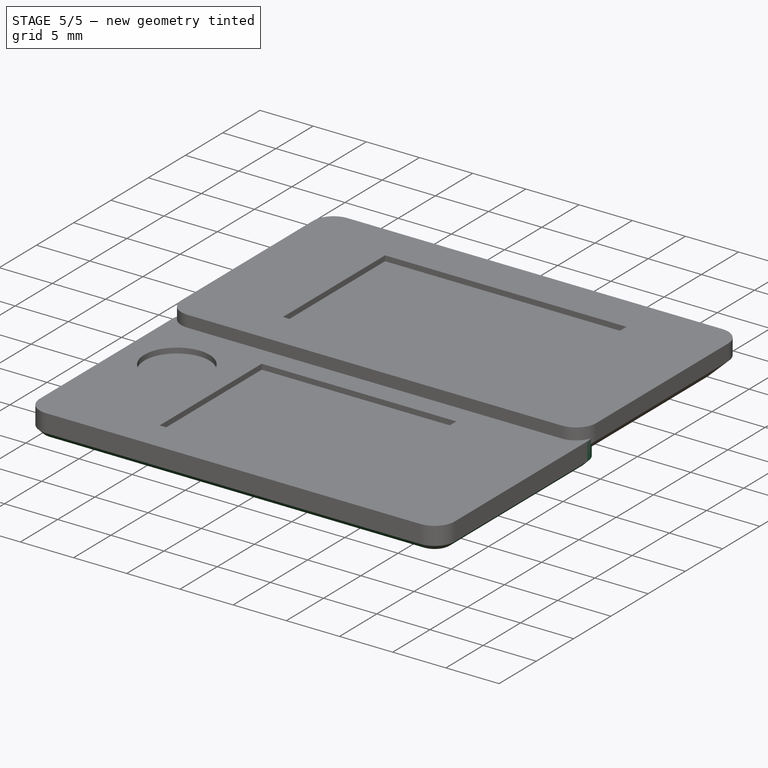
[diagram: stage 5 of 5 — iso view after this stage's code; geometry added in this stage tinted green]
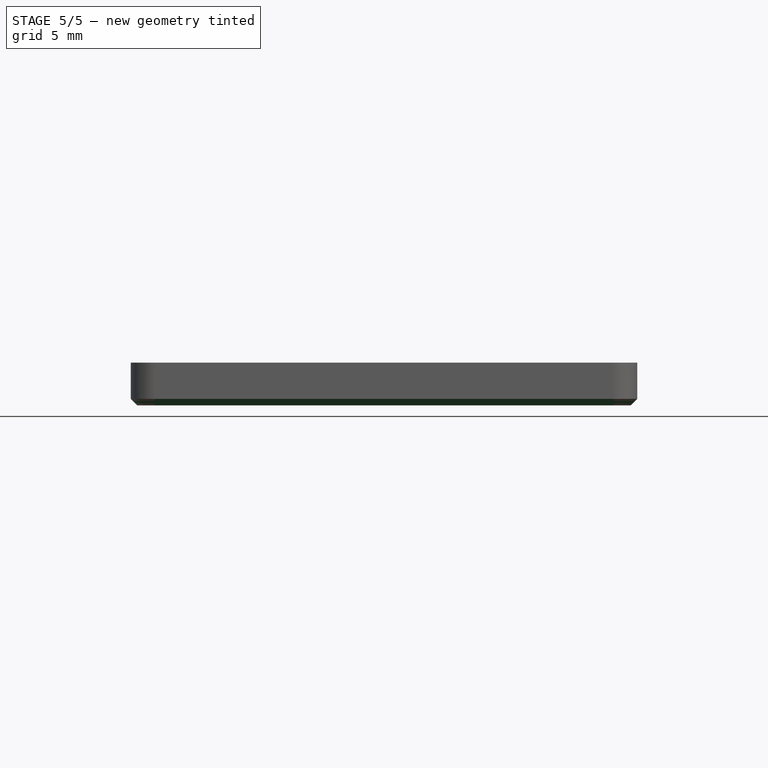
[diagram: stage 5 of 5 — front view after this stage's code; geometry added in this stage tinted green]
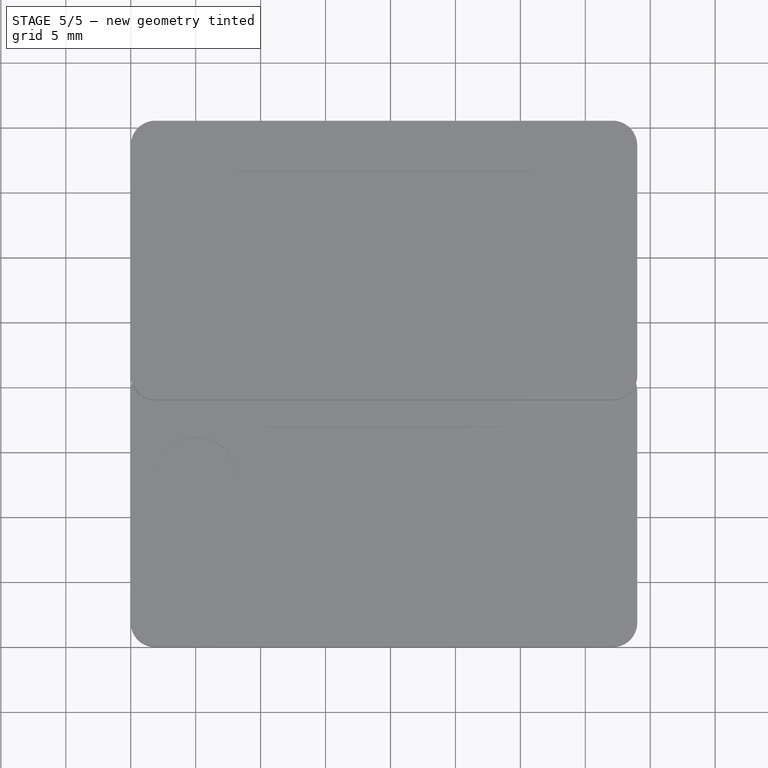
[diagram: stage 5 of 5 — top view after this stage's code; geometry added in this stage tinted green]
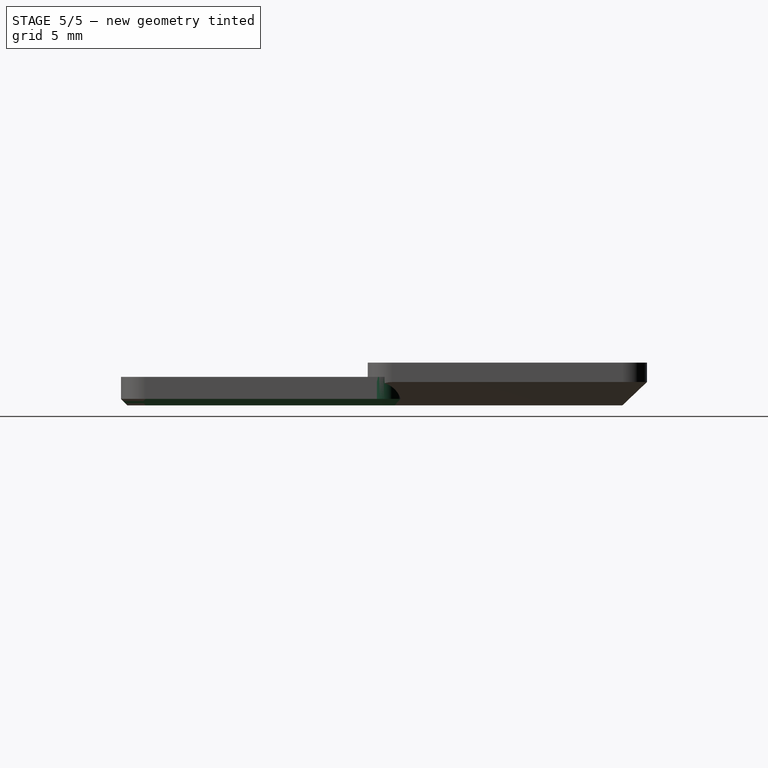
[diagram: stage 5 of 5 — right view after this stage's code; geometry added in this stage tinted green]
FEATURE [Sketcher::SketchObject] Sketch013
  ExternalGeometry = -> [Pad005]
  FullyConstrained = true
  MapMode = 5
  Placement = pos=(0,0,0) rot=(1,0,0;3.14159rad)
  Support = -> [Pad005]
  sketch-geometry (6):
    g0: LineSegment StartX=39 StartY=-18.7 StartZ=0 EndX=0 EndY=-18.7 EndZ=0
    g1: LineSegment StartX=0 StartY=-18.7 StartZ=0 EndX=0 EndY=-19.7 EndZ=0
    g2: LineSegment StartX=39 StartY=-18.7 StartZ=0 EndX=39 EndY=-19.7 EndZ=0
    g3: ArcOfCircle CenterX=37.1 CenterY=-19.7 CenterZ=0 NormalX=0 NormalY=0 NormalZ=1 AngleXU=0 Radius=1.9 StartAngle=4.71239 EndAngle=6.28319
    g4: ArcOfCircle CenterX=1.9 CenterY=-19.7 CenterZ=0 NormalX=0 NormalY=0 NormalZ=1 AngleXU=0 Radius=1.9 StartAngle=3.14159 EndAngle=4.71361
    g5: LineSegment StartX=1.90233 StartY=-21.6 StartZ=0 EndX=37.1 EndY=-21.6 EndZ=0
  constraints (15):
    c: Coincident(g0,g-6)
    c: Coincident(g0,g-5)
    c: Coincident(g1,g0)
    c: PointOnObject(g1,g-4)
    c: Vertical(g1)
    c: Coincident(g2,g0)
    c: PointOnObject(g2,g-3)
    c: Vertical(g2)
    c: Coincident(g3,g-3)
    c: Coincident(g3,g2)
    c: Coincident(g4,g-4)
    c: Coincident(g4,g1)
    c: Coincident(g5,g4)
    c: Horizontal(g5)
    c: Tangent(g5,g3) = -1.5708
FEATURE [PartDesign::Pad] Pad006
  BaseFeature = -> Pad005
  Direction = (0,0,-1)
  Length = 2.2
  Length2 = 10
  Profile = -> Sketch013
  ReferenceAxis = -> Sketch013 [N_Axis]
  Refine = true
  Reversed = true
  Type = 0
FEATURE [PartDesign::Pocket] Pocket007
  BaseFeature = -> Pad006
  Direction = (0,0,-1)
  Length = 5
  Length2 = 5
  Profile = -> Pad006 [Face20]
  Type = 0
FEATURE [PartDesign::Pocket] Pocket008
  BaseFeature = -> Pocket007
  Direction = (0,0,-1)
  Length = 5
  Length2 = 5
  Profile = -> Pocket007 [Face25]
  Refine = true
  Type = 0
FEATURE [PartDesign::Chamfer] Chamfer
  Angle = 45
  Base = -> Pocket008 [Edge13]
  BaseFeature = -> Pocket008
  ChamferType = 0
  FlipDirection = false
  Size = 0.5
  Size2 = 1
  SupportTransform = false
  UseAllEdges = false
FEATURE [PartDesign::Body] Body001  label="Key Chain"
  BaseFeature = -> Pocket003
  Group = -> [Clone,Sketch005,Pocket004,Sketch006,Pad001,Sketch007,Pad002,Sketch008,Pad003,Pocket005,Sketch010,Revolution001,Sketch011,Revolution,Pad004,Sketch012,Pocket006,Pad005,Sketch013,Pad006,Pocket007,Pocket008,Chamfer]
  Origin = -> Origin002
  Placement = pos=(50,0,0) rot=(0,0,1;0rad)
  Tip = -> Chamfer
FEATURE [App::Part] Part  label="3DS"
  Group = -> [Body,Body001]
  Origin = -> Origin
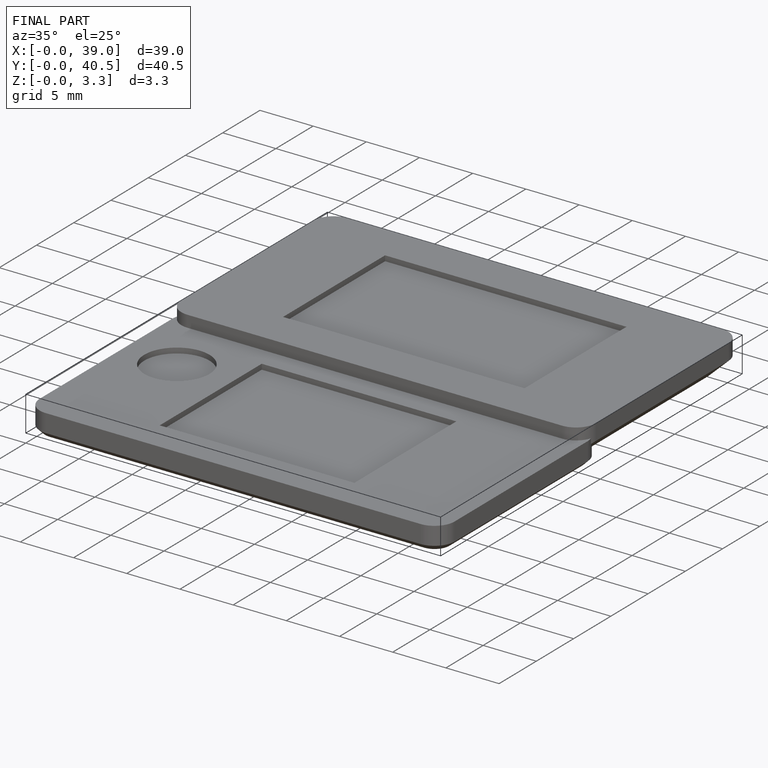
[diagram: finished part — iso view with bounding-box wireframe]
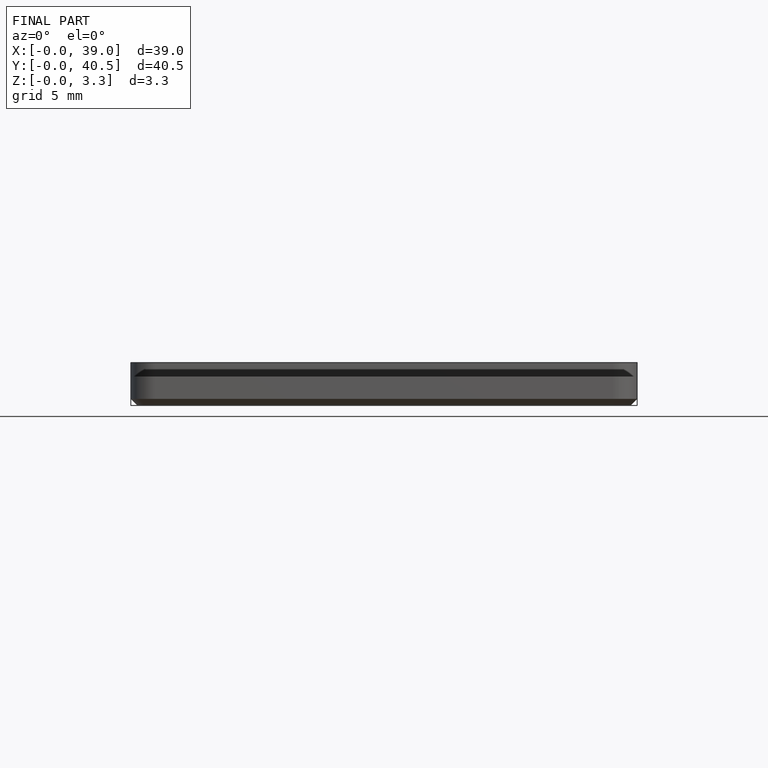
[diagram: finished part — front view with bounding-box wireframe]
